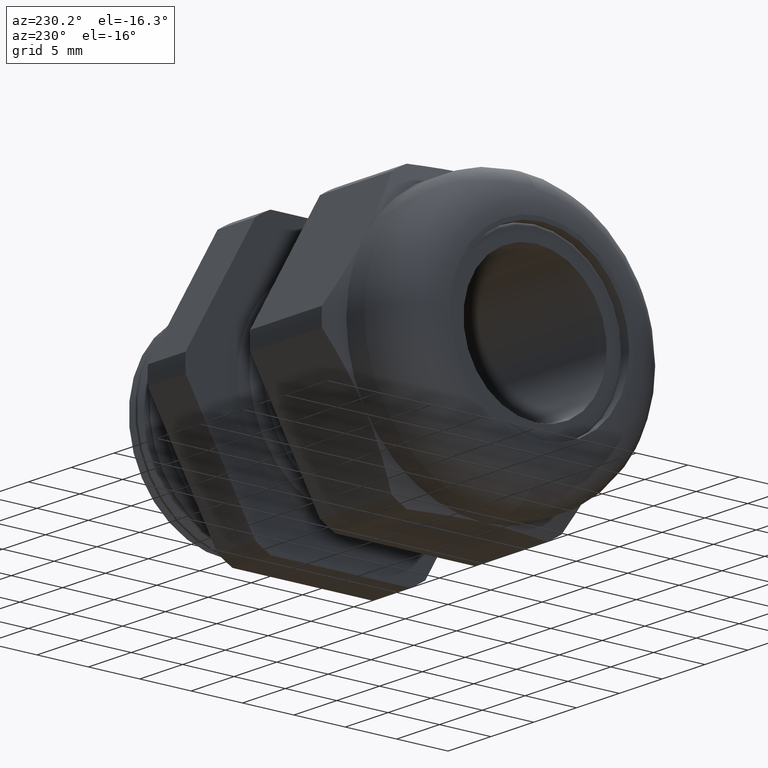
[diagram: clean part render]
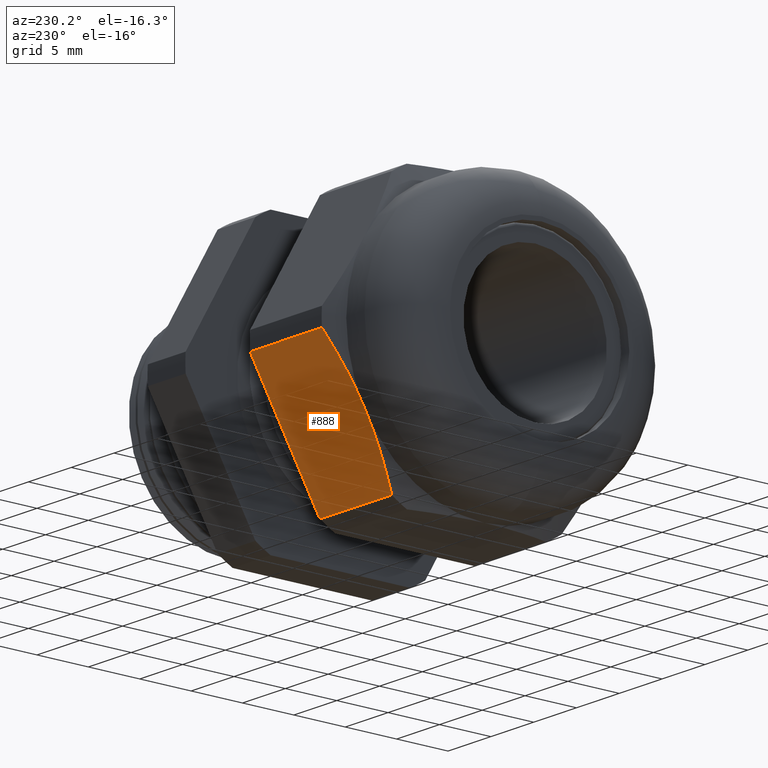
[diagram: same view with one face highlighted and labeled with its STEP entity id]
A machine part, auxiliary view. The second image highlights one B-rep face of the part: STEP entity #888.
In plain terms, the highlighted planar face has unit normal (0, 0.866, -0.5).
Its self-contained STEP definition (entity closure, byte-faithful):
#380 = VERTEX_POINT ( 'NONE', #1538 ) ;
#731 = EDGE_CURVE ( 'NONE', #810, #732, #2075, .T. ) ;
#732 = VERTEX_POINT ( 'NONE', #2071 ) ;
#771 = VERTEX_POINT ( 'NONE', #2189 ) ;
#773 = EDGE_CURVE ( 'NONE', #795, #771, #2188, .T. ) ;
#795 = VERTEX_POINT ( 'NONE', #2201 ) ;
#810 = VERTEX_POINT ( 'NONE', #2234 ) ;
#868 = ORIENTED_EDGE ( 'NONE', *, *, #869, .T. ) ;
#869 = EDGE_CURVE ( 'NONE', #380, #795, #2404, .T. ) ;
#870 = ORIENTED_EDGE ( 'NONE', *, *, #773, .T. ) ;
#871 = ORIENTED_EDGE ( 'NONE', *, *, #872, .T. ) ;
#872 = EDGE_CURVE ( 'NONE', #771, #732, #2403, .T. ) ;
#888 = ADVANCED_FACE ( 'NONE', ( #2452 ), #2451, .T. ) ;
#889 = EDGE_LOOP ( 'NONE', ( #890, #891, #868, #870, #871 ) ) ;
#890 = ORIENTED_EDGE ( 'NONE', *, *, #731, .F. ) ;
#891 = ORIENTED_EDGE ( 'NONE', *, *, #892, .T. ) ;
#892 = EDGE_CURVE ( 'NONE', #810, #380, #2445, .T. ) ;
#1538 = CARTESIAN_POINT ( 'NONE',  ( -0.8375000000000000200, 0.4589934640057526900, -0.2650000000000001200 ) ) ;
#2071 = CARTESIAN_POINT ( 'NONE',  ( -0.4708333333333330500, 0.3253325497488163100, -0.4965074944791206800 ) ) ;
#2072 = DIRECTION ( 'NONE',  ( 1.000000000000000000, 0.0000000000000000000, 0.0000000000000000000 ) ) ;
#2073 = VECTOR ( 'NONE', #2072, 39.37007874015748100 ) ;
#2074 = CARTESIAN_POINT ( 'NONE',  ( -2.533243884661831900, 0.3253325497488163100, -0.4965074944791206800 ) ) ;
#2075 = LINE ( 'NONE', #2074, #2073 ) ;
#2185 = DIRECTION ( 'NONE',  ( 1.000000000000000000, 0.0000000000000000000, 0.0000000000000000000 ) ) ;
#2186 = VECTOR ( 'NONE', #2185, 39.37007874015748100 ) ;
#2187 = CARTESIAN_POINT ( 'NONE',  ( -2.533243884661831900, 0.5926543782626886300, -0.03349250552087918600 ) ) ;
#2188 = LINE ( 'NONE', #2187, #2186 ) ;
#2189 = CARTESIAN_POINT ( 'NONE',  ( -0.4708333333333330500, 0.5926543782626886300, -0.03349250552087918600 ) ) ;
#2201 = CARTESIAN_POINT ( 'NONE',  ( -0.8007805228795397100, 0.5926543782626887400, -0.03349250552087917900 ) ) ;
#2234 = CARTESIAN_POINT ( 'NONE',  ( -0.8007805228795397100, 0.3253325497488163700, -0.4965074944791207900 ) ) ;
#2392 = VECTOR ( 'NONE', #2401, 39.37007874015748900 ) ;
#2393 = CARTESIAN_POINT ( 'NONE',  ( -0.8007805228795397100, 0.5926543782626887400, -0.03349250552087917900 ) ) ;
#2394 = CARTESIAN_POINT ( 'NONE',  ( -0.8121583111907524400, 0.5707743463978561800, -0.07138983238199540800 ) ) ;
#2395 = CARTESIAN_POINT ( 'NONE',  ( -0.8214003591281864300, 0.5487193861851588100, -0.1095901440292973200 ) ) ;
#2396 = CARTESIAN_POINT ( 'NONE',  ( -0.8309221305962483100, 0.5152813705712209200, -0.1675064859769189200 ) ) ;
#2397 = CARTESIAN_POINT ( 'NONE',  ( -0.8333721404368326100, 0.5040760730113617000, -0.1869146306645226600 ) ) ;
#2398 = CARTESIAN_POINT ( 'NONE',  ( -0.8366665420851497900, 0.4815339693462992200, -0.2259586995218954800 ) ) ;
#2399 = CARTESIAN_POINT ( 'NONE',  ( -0.8375000000000000200, 0.4702241497211294100, -0.2455478817371290500 ) ) ;
#2400 = CARTESIAN_POINT ( 'NONE',  ( -0.8375000000000000200, 0.4589934640057526900, -0.2650000000000001200 ) ) ;
#2401 = DIRECTION ( 'NONE',  ( 0.0000000000000000000, -0.5000000000000000000, -0.8660254037844386000 ) ) ;
#2402 = CARTESIAN_POINT ( 'NONE',  ( -0.4708333333333332700, 0.5577434640057523700, -0.09395998275257333400 ) ) ;
#2403 = LINE ( 'NONE', #2402, #2392 ) ;
#2404 = B_SPLINE_CURVE_WITH_KNOTS ( 'NONE', 3,
 ( #2400, #2399, #2398, #2397, #2396, #2395, #2394, #2393 ),
 .UNSPECIFIED., .F., .F.,
 ( 4, 2, 2, 4 ),
 ( 0.006851532669467769000, 0.008552772946843111000, 0.01025401322421845400, 0.01365649377896913800 ),
 .UNSPECIFIED. ) ;
#2440 = CARTESIAN_POINT ( 'NONE',  ( -0.8214552305450429900, 0.3694210314480135300, -0.4201440041475404400 ) ) ;
#2441 = CARTESIAN_POINT ( 'NONE',  ( -0.8122123161882934800, 0.3473164358104832700, -0.4584302868725079700 ) ) ;
#2442 = CARTESIAN_POINT ( 'NONE',  ( -0.8007805228795397100, 0.3253325497488163700, -0.4965074944791207900 ) ) ;
#2445 = B_SPLINE_CURVE_WITH_KNOTS ( 'NONE', 3,
 ( #2442, #2441, #2440, #2504, #2503, #2502 ),
 .UNSPECIFIED., .F., .F.,
 ( 4, 2, 4 ),
 ( 2.361309237109395500E-007, 0.003425884400195740000, 0.006851532669467769000 ),
 .UNSPECIFIED. ) ;
#2447 = DIRECTION ( 'NONE',  ( 0.0000000000000000000, 0.5000000000000000000, 0.8660254037844386000 ) ) ;
#2448 = DIRECTION ( 'NONE',  ( 0.0000000000000000000, 0.8660254037844387100, -0.5000000000000001100 ) ) ;
#2449 = CARTESIAN_POINT ( 'NONE',  ( -2.533243884661831900, 0.3253325497488162000, -0.4965074944791207400 ) ) ;
#2450 = AXIS2_PLACEMENT_3D ( 'NONE', #2449, #2448, #2447 ) ;
#2451 = PLANE ( 'NONE',  #2450 ) ;
#2452 = FACE_OUTER_BOUND ( 'NONE', #889, .T. ) ;
#2502 = CARTESIAN_POINT ( 'NONE',  ( -0.8375000000000000200, 0.4589934640057526900, -0.2650000000000001200 ) ) ;
#2503 = CARTESIAN_POINT ( 'NONE',  ( -0.8375000000000000200, 0.4363791516153982000, -0.3041691380383280100 ) ) ;
#2504 = CARTESIAN_POINT ( 'NONE',  ( -0.8341133144435340900, 0.4139516039507624100, -0.3430147900826496800 ) ) ;